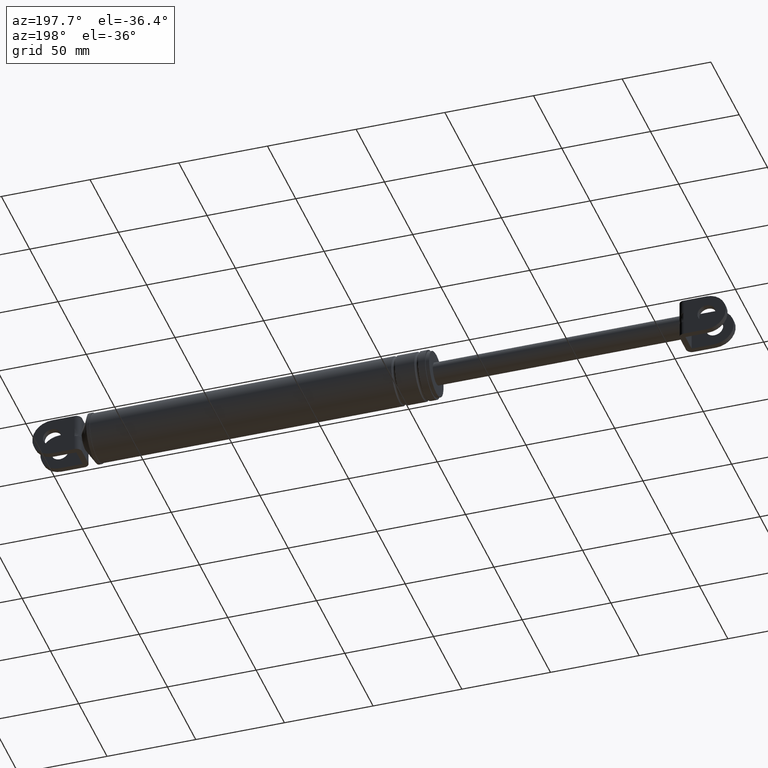
[diagram: clean part render]
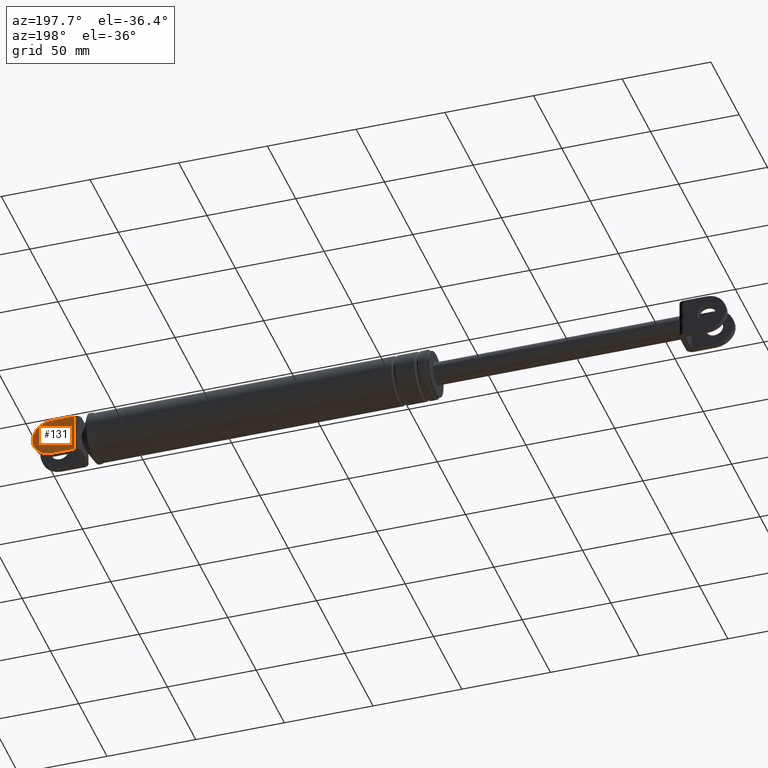
[diagram: same view with one face highlighted and labeled with its STEP entity id]
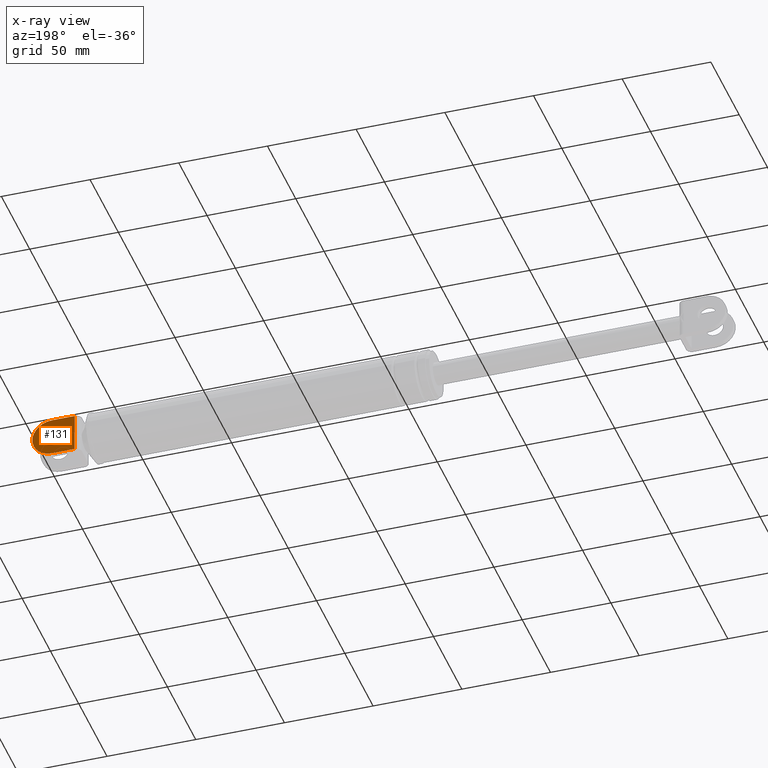
[diagram: x-ray of the same camera — body ghosted, the highlighted face saturated]
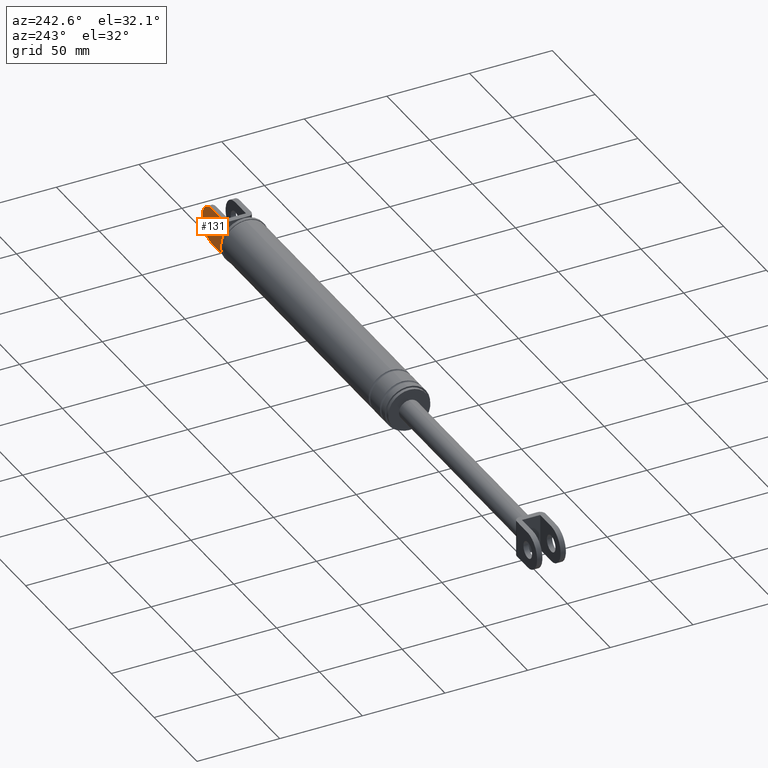
[diagram: same view with one face highlighted and labeled with its STEP entity id]
A machine part, auxiliary view. The second image highlights one B-rep face of the part: STEP entity #131.
The next image is the same camera in x-ray: the body ghosted, the highlighted face saturated — about 0% of this face is hidden behind the body in this view.
A second angle (auxiliary view) of the same face is appended — the face is thin or edge-on in the first view.
In plain terms, the highlighted planar face has unit normal (0, -1, 0).
Its self-contained STEP definition (entity closure, byte-faithful):
#131=ADVANCED_FACE('',(#372,#373),#371,.F.);
#371=PLANE('',#981);
#372=FACE_OUTER_BOUND('',#982,.T.);
#373=FACE_BOUND('',#983,.T.);
#978=CARTESIAN_POINT('',(3.83356375924E+002,8.69999700000E+000,1.96966281149E+002));
#979=DIRECTION('',(0.00000000000E+000,-1.00000000000E+000,0.00000000000E+000));
#980=DIRECTION('',(0.00000000000E+000,0.00000000000E+000,-1.00000000000E+000));
#981=AXIS2_PLACEMENT_3D('',#978,#979,#980);
#982=EDGE_LOOP('',(#1492,#1493,#1494,#1495,#1496,#1497));
#983=EDGE_LOOP('',(#1498,#1499));
#1492=ORIENTED_EDGE('',*,*,#1756,.T.);
#1493=ORIENTED_EDGE('',*,*,#1744,.T.);
#1494=ORIENTED_EDGE('',*,*,#1711,.T.);
#1495=ORIENTED_EDGE('',*,*,#1742,.T.);
#1496=ORIENTED_EDGE('',*,*,#1758,.F.);
#1497=ORIENTED_EDGE('',*,*,#1749,.F.);
#1498=ORIENTED_EDGE('',*,*,#1770,.T.);
#1499=ORIENTED_EDGE('',*,*,#1771,.T.);
#1711=EDGE_CURVE('',#1864,#1879,#1886,.T.);
#1742=EDGE_CURVE('',#1879,#2088,#2095,.T.);
#1744=EDGE_CURVE('',#2101,#1864,#2108,.T.);
#1749=EDGE_CURVE('',#2134,#2141,#2142,.T.);
#1756=EDGE_CURVE('',#2134,#2101,#2188,.T.);
#1758=EDGE_CURVE('',#2141,#2088,#2200,.T.);
#1770=EDGE_CURVE('',#2282,#2283,#2284,.T.);
#1771=EDGE_CURVE('',#2283,#2282,#2290,.T.);
#1864=VERTEX_POINT('',#2898);
#1879=VERTEX_POINT('',#2909);
#1886=(BOUNDED_CURVE() B_SPLINE_CURVE(3,(#2914,#2915,#2916,#2917,#2918,#2919,#2920,#2921,#2922,#2923),.UNSPECIFIED.,.F.,.F.) B_SPLINE_CURVE_WITH_KNOTS((4,2,2,2,4),(0.00000000000E+000,1.19940700729E-003,2.39881401459E-003,3.59822102188E-003,4.79762802917E-003),.UNSPECIFIED.) CURVE() GEOMETRIC_REPRESENTATION_ITEM() RATIONAL_B_SPLINE_CURVE((1.00000000000E+000,1.00000000000E+000,1.00000000000E+000,1.00000000000E+000,1.00000000000E+000,1.00000000000E+000,1.00000000000E+000,1.00000000000E+000,1.00000000000E+000,1.00000000000E+000)) REPRESENTATION_ITEM('') );
#2088=VERTEX_POINT('',#3055);
#2095=LINE('',#3060,#3061);
#2101=VERTEX_POINT('',#3063);
#2108=LINE('',#3068,#3069);
#2134=VERTEX_POINT('',#3083);
#2141=VERTEX_POINT('',#3087);
#2142=CIRCLE('',#3091,1.10000000000E+001);
#2188=LINE('',#3116,#3117);
#2200=LINE('',#3122,#3123);
#2282=VERTEX_POINT('',#3178);
#2283=VERTEX_POINT('',#3179);
#2284=CIRCLE('',#3183,5.00000000000E+000);
#2290=CIRCLE('',#3187,5.00000000000E+000);
#2898=CARTESIAN_POINT('',(3.85779615648E+002,8.69999700000E+000,1.81368357354E+002));
#2909=CARTESIAN_POINT('',(3.85779615648E+002,8.69999700000E+000,1.86164202640E+002));
#2914=CARTESIAN_POINT('',(3.85779615648E+002,8.69999700000E+000,1.81368357354E+002));
#2915=CARTESIAN_POINT('',(3.85779615648E+002,8.69999700000E+000,1.81768233483E+002));
#2916=CARTESIAN_POINT('',(3.85767980952E+002,8.69999700000E+000,1.82167886062E+002));
#2917=CARTESIAN_POINT('',(3.85748117480E+002,8.69999700000E+000,1.82967256661E+002));
#2918=CARTESIAN_POINT('',(3.85740306808E+002,8.69999700000E+000,1.83367014868E+002));
#2919=CARTESIAN_POINT('',(3.85740315795E+002,8.69999700000E+000,1.84166326947E+002));
#2920=CARTESIAN_POINT('',(3.85748131376E+002,8.69999700000E+000,1.84565902543E+002));
#2921=CARTESIAN_POINT('',(3.85767990303E+002,8.69999700000E+000,1.85365010194E+002));
#2922=CARTESIAN_POINT('',(3.85779615648E+002,8.69999700000E+000,1.85764546553E+002));
#2923=CARTESIAN_POINT('',(3.85779615648E+002,8.69999700000E+000,1.86164202640E+002));
#3055=CARTESIAN_POINT('',(3.85779615648E+002,8.69999700000E+000,1.94766279997E+002));
#3060=CARTESIAN_POINT('',(3.85779615648E+002,8.69999700000E+000,1.86164202640E+002));
#3061=VECTOR('',#3062,8.60207735738E+000);
#3062=DIRECTION('',(0.00000000000E+000,0.00000000000E+000,1.00000000000E+000));
#3063=CARTESIAN_POINT('',(3.85779615648E+002,8.69999700000E+000,1.72766279997E+002));
#3068=CARTESIAN_POINT('',(3.85779615648E+002,8.69999700000E+000,1.72766279997E+002));
#3069=VECTOR('',#3070,8.60207735738E+000);
#3070=DIRECTION('',(0.00000000000E+000,0.00000000000E+000,1.00000000000E+000));
#3083=CARTESIAN_POINT('',(3.98579614688E+002,8.69999700000E+000,1.72766279997E+002));
#3087=CARTESIAN_POINT('',(3.98579614688E+002,8.69999700000E+000,1.94766279997E+002));
#3088=CARTESIAN_POINT('',(3.98579615648E+002,8.69999700000E+000,1.83766279997E+002));
#3089=DIRECTION('',(-0.00000000000E+000,-1.00000000000E+000,0.00000000000E+000));
#3090=DIRECTION('',(-8.72664570491E-008,0.00000000000E+000,1.00000000000E+000));
#3091=AXIS2_PLACEMENT_3D('',#3088,#3089,#3090);
#3116=CARTESIAN_POINT('',(3.98579614688E+002,8.69999700000E+000,1.72766279997E+002));
#3117=VECTOR('',#3118,1.27999990401E+001);
#3118=DIRECTION('',(-1.00000000000E+000,0.00000000000E+000,0.00000000000E+000));
#3122=CARTESIAN_POINT('',(3.98579614688E+002,8.69999700000E+000,1.94766279997E+002));
#3123=VECTOR('',#3124,1.27999990401E+001);
#3124=DIRECTION('',(-1.00000000000E+000,0.00000000000E+000,0.00000000000E+000));
#3178=CARTESIAN_POINT('',(3.98579615648E+002,8.69999700000E+000,1.88766279997E+002));
#3179=CARTESIAN_POINT('',(3.98579615648E+002,8.69999700000E+000,1.78766279997E+002));
#3180=CARTESIAN_POINT('',(3.98579615648E+002,8.69999700000E+000,1.83766279997E+002));
#3181=DIRECTION('',(-0.00000000000E+000,-1.00000000000E+000,0.00000000000E+000));
#3182=DIRECTION('',(-1.22460635382E-016,0.00000000000E+000,1.00000000000E+000));
#3183=AXIS2_PLACEMENT_3D('',#3180,#3181,#3182);
#3184=CARTESIAN_POINT('',(3.98579615648E+002,8.69999700000E+000,1.83766279997E+002));
#3185=DIRECTION('',(-0.00000000000E+000,-1.00000000000E+000,0.00000000000E+000));
#3186=DIRECTION('',(-1.22460635382E-016,0.00000000000E+000,1.00000000000E+000));
#3187=AXIS2_PLACEMENT_3D('',#3184,#3185,#3186);